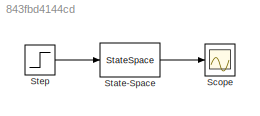
MODEL slx_843fbd4144cd
KIND model
CONFIG AbsTol = auto
CONFIG EnableMultiTasking = off
CONFIG FixedStep = auto
CONFIG MaxStep = auto
CONFIG MinStep = auto
CONFIG RelTol = 1e-3
CONFIG SampleTimeConstraint = Unconstrained
CONFIG SolverName = VariableStepAuto
CONFIG StartTime = 0.0
CONFIG StopTime = 10.0
BLOCK [Scope] Scope
  Floating = off
  NumInputPorts = 1
  Ports = [1]
  ScopeSpecificationString = Simulink.scopes.TimeScopeBlockCfg('CurrentConfiguration', extmgr.ConfigurationSet(extmgr.Configuration('Core','General UI',true),extmgr.Configuration('Core','Source UI',true),extmgr.Configuration('Sources','WiredSimulink',true),extmgr.Configuration('Visuals','Time Domain',true,'SerializedDisplays',{struct('MinYLimReal','-10.56109','MaxYLimReal','11.11526','YLabelReal','','MinYLimMag','0.00000','Ma...<+1411ch>
BLOCK [StateSpace] State-Space
  A = sys.A
  B = sys.B
  C = sys.C
  D = sys.D
  InitialCondition = [0; 0]
  Ports = [1, 1]
BLOCK [Step] Step
  After = 20
  SampleTime = 0
LINE State-Space:1 -> Scope:1
LINE Step:1 -> State-Space:1
